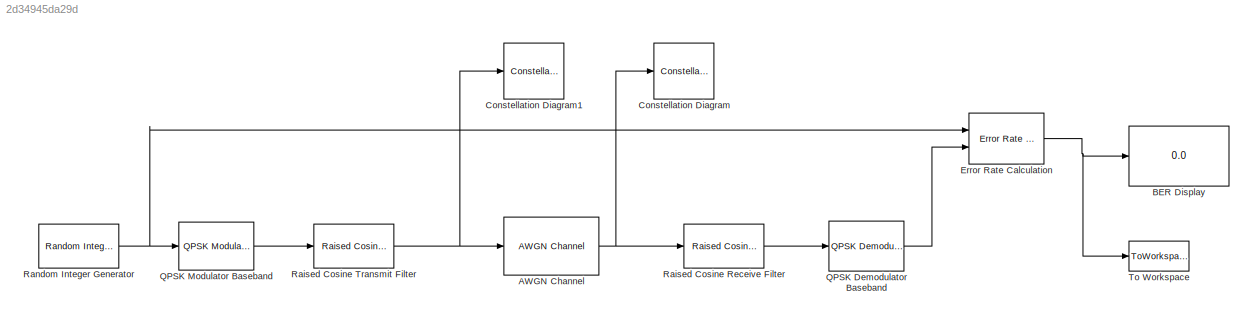
MODEL slx_2d34945da29d
KIND model
CONFIG AbsTol = auto
CONFIG FixedStep = auto
CONFIG MaxStep = auto
CONFIG MinStep = auto
CONFIG RelTol = 1e-3
CONFIG SampleTimeConstraint = Unconstrained
CONFIG Solver = ode45
CONFIG SolverMode = Auto
CONFIG SolverName = ode45
CONFIG StartTime = 0.0
CONFIG StopTime = 10.0
BLOCK [Reference] AWGN Channel  REF=commchan3/AWGN
Channel
  EbNodB = EbNo
  EsNodB = 10
  InputProcessing = Columns as channels (frame based)
  Ports = [1, 1]
  Ps = 1
  SNRdB = 10
  SourceBlock = commchan3/AWGN\nChannel
  SourceType = AWGN Channel
  Tsym = 1
  UserDataPersistent = on
  bitsPerSym = 2
  noiseMode = Signal to noise ratio  (Eb/No)
  seed = 67
  variance = 1
BLOCK [Display] BER Display
  Decimation = 1
  Ports = [1]
BLOCK [ConstellationDiagram] Constellation Diagram
  Ports = [1]
  ScopeSpecificationString = comm.scopes.ConstellationDiagramBlockCfg('CurrentConfiguration', extmgr.ConfigurationSet(extmgr.Configuration('Core','General UI',true),extmgr.Configuration('Core','Source UI',true),extmgr.Configuration('Sources','WiredSimulink',true),extmgr.Configuration('Visuals','Constellation',true,'LineProperties',struct('DisplayName','','Color',[1 1 0.0666666666666667],'LineStyle','none','LineWidth',0.5,'Mar...<+943ch>
BLOCK [ConstellationDiagram] Constellation Diagram1
  Ports = [1]
  ScopeSpecificationString = comm.scopes.ConstellationDiagramBlockCfg('CurrentConfiguration', extmgr.ConfigurationSet(extmgr.Configuration('Core','General UI',true),extmgr.Configuration('Core','Source UI',true),extmgr.Configuration('Sources','WiredSimulink',true),extmgr.Configuration('Visuals','Constellation',true,'LineProperties',struct('DisplayName','','Color',[1 1 0.0666666666666667],'LineStyle','none','LineWidth',0.5,'Mar...<+942ch>
BLOCK [Reference] Error Rate Calculation  REF=commsink2/Error Rate
Calculation
  N = 8
  PMode = Port
  Ports = [2, 1]
  RsMode2 = off
  SourceBlock = commsink2/Error Rate\nCalculation
  SourceType = Error Rate Calculation
  WsName = ErrorVec
  cp_mode = Entire frame
  maxBits = 1e6
  numErr = 100
  st_delay = 0
  stop = off
  subframe = []
BLOCK [Reference] QPSK Demodulator Baseband  REF=commdigbbndpm3/QPSK
Demodulator
Baseband
  Dec = Binary
  DecType = Hard decision
  OutType = Integer
  Ph = pi/4
  Ports = [1, 1]
  SourceBlock = commdigbbndpm3/QPSK\nDemodulator\nBaseband
  SourceType = QPSK Demodulator Baseband
  VarSource = Dialog
  Variance = 1
  derotateFactorDTMode = Same word length as input
  derotateFactorWordLen = 16
  outDtype1 = Inherit via internal rule
  outDtype2 = Inherit via internal rule
BLOCK [Reference] QPSK Modulator Baseband  REF=commdigbbndpm3/QPSK
Modulator
Baseband
  Enc = Binary
  InType = Integer
  Ph = pi/4
  Ports = [1, 1]
  SourceBlock = commdigbbndpm3/QPSK\nModulator\nBaseband
  SourceType = QPSK Modulator Baseband
  outDtype = double
  outFracLen = 15
  outFracLenMode = Best precision
  outUDDataType = sfix(16)
  outWordLen = 16
BLOCK [Reference] Raised Cosine Receive Filter  REF=commfilt2/Raised Cosine
Receive Filter
  D = (8)/2
  InputProcessing = Columns as channels (frame based)
  LockScale = off
  N = 8
  Ports = [1, 1]
  R = 0.2
  SourceBlock = commfilt2/Raised Cosine\nReceive Filter
  SourceType = Raised Cosine Receive Filter
  UserDataPersistent = on
  accumFracLength = 30
  accumMode = Same as product output
  accumWordLength = 32
  checkCoeff = off
  checkGain = Normalized
  coeffFracLength = 15
  coeffMode = Same word length as input
  coeffWordLength = 16
  currentFiltSpan = 8
  downFactor = 8
  downOffset = 0
  filtSpan = 8
  filtType = Square root
  filterGain = 1
  framing = Enforce single-rate processing
  launchFVT = on
  outputFracLength = 15
  outputMode = Same as accumulator
  outputWordLength = 16
  overflowMode = off
  prodOutputFracLength = 30
  prodOutputMode = Same as input
  prodOutputWordLength = 32
  rateMode = Downsampling
  roundingMode = Floor
  sampMode = Mute
  saveAsFlag = 0
  variableName = rcRxFilt
BLOCK [Reference] Raised Cosine Transmit Filter  REF=commfilt2/Raised Cosine
Transmit Filter
  D = (8)/2
  InputProcessing = Columns as channels (frame based)
  LockScale = off
  N = 8
  Ports = [1, 1]
  R = 0.2
  SourceBlock = commfilt2/Raised Cosine\nTransmit Filter
  SourceType = Raised Cosine Transmit Filter
  UserDataPersistent = on
  accumFracLength = 30
  accumMode = Inherit via internal rule
  accumWordLength = 32
  checkCoeff = off
  checkGain = Normalized
  coeffFracLength = 15
  coeffMode = Same word length as input
  coeffWordLength = 16
  currentFiltSpan = 8
  filtSpan = 8
  filtType = Square root
  filterGain = 1
  framing = Enforce single-rate processing
  launchFVT = on
  outputFracLength = 15
  outputMode = Same as accumulator
  outputWordLength = 16
  overflowMode = off
  prodOutputFracLength = 30
  prodOutputMode = Inherit via internal rule
  prodOutputWordLength = 32
  roundingMode = Floor
  sampMode = Mute
  saveAsFlag = 0
  variableName = rcTxFilt
BLOCK [Reference] Random Integer Generator  REF=commrandsrc2/Random Integer
Generator
  Ports = [0, 1]
  SourceBlock = commrandsrc2/Random Integer\nGenerator
  SourceType = Random Integer Generator
  Ts = 1
  frameBased = on
  mul = 4
  orient = off
  outDataType = double
  sampPerFrame = 100
  seed = 37
BLOCK [ToWorkspace] To Workspace
  FixptAsFi = on
  MaxDataPoints = 2
  Ports = [1]
  SampleTime = -1
  Save2DSignal = 2-D array (concatenate along first dimension)
  VariableName = BER
NET AWGN Channel:1 -> Constellation Diagram:1, Raised Cosine Receive Filter:1
NET Error Rate Calculation:1 -> BER Display:1, To Workspace:1
LINE QPSK Demodulator Baseband:1 -> Error Rate Calculation:2
LINE QPSK Modulator Baseband:1 -> Raised Cosine Transmit Filter:1
LINE Raised Cosine Receive Filter:1 -> QPSK Demodulator Baseband:1
NET Raised Cosine Transmit Filter:1 -> AWGN Channel:1, Constellation Diagram1:1
NET Random Integer Generator:1 -> Error Rate Calculation:1, QPSK Modulator Baseband:1
note: NET lines group one-source signal fan-out (src -> all destinations, sorted); 1:1 wires keep LINE
